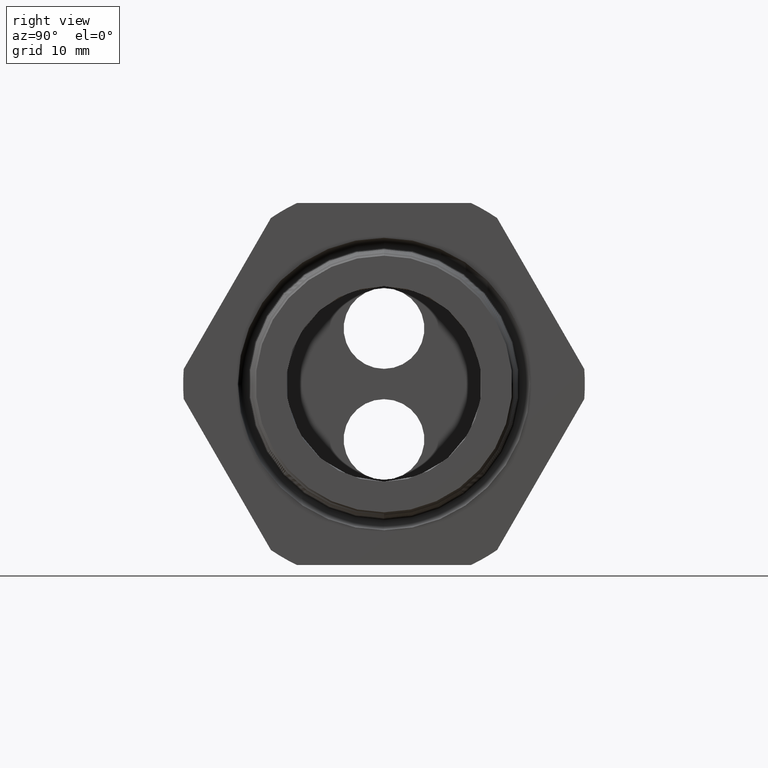
[diagram: clean part render]
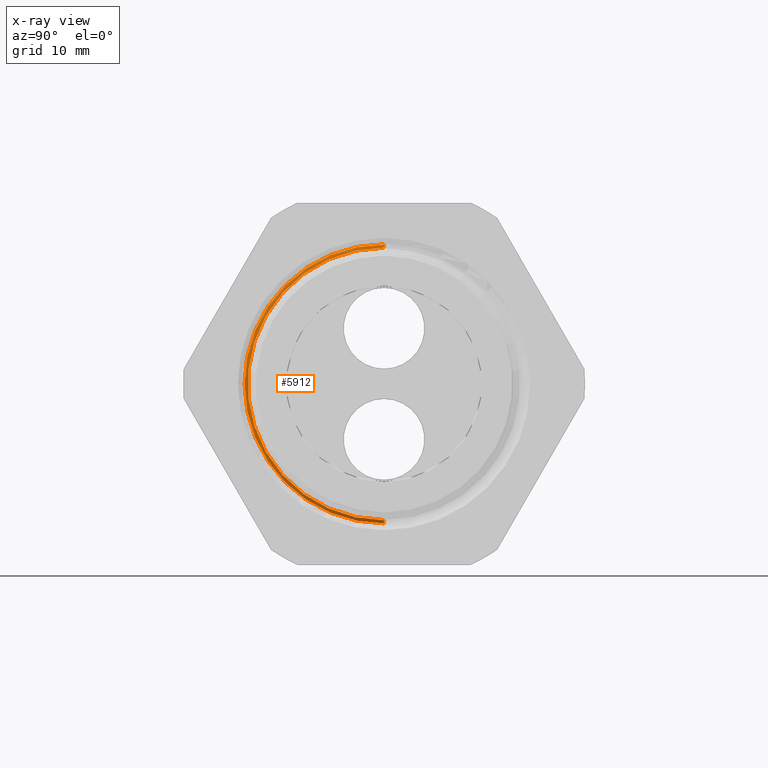
[diagram: x-ray — body ghosted, one internal face saturated and labeled with its STEP entity id]
A machine part, right view, then the same camera in x-ray: the body is ghosted and one INTERNAL B-rep face — a face not visible from any outside direction — is saturated and labeled: STEP entity #5912.
In plain terms, the highlighted conical surface has half-angle 62 deg.
Its self-contained STEP definition (entity closure, byte-faithful):
#61 = VERTEX_POINT ( 'NONE', #513 ) ;
#62 = VERTEX_POINT ( 'NONE', #512 ) ;
#512 = CARTESIAN_POINT ( 'NONE',  ( -0.6067624839723554400, 6.065888310177427100E-017, -0.4895114984791283900 ) ) ;
#513 = CARTESIAN_POINT ( 'NONE',  ( -0.6067624839723554400, 0.0000000000000000000, 0.4895114984791283900 ) ) ;
#968 = EDGE_CURVE ( 'NONE', #62, #986, #1128, .T. ) ;
#986 = VERTEX_POINT ( 'NONE', #1124 ) ;
#1124 = CARTESIAN_POINT ( 'NONE',  ( -0.6129365566449482800, 6.140457212240825100E-017, -0.5011232403534451300 ) ) ;
#1125 = DIRECTION ( 'NONE',  ( -0.4694715627859013000, 1.081298943409538600E-016, -0.8829475928589214400 ) ) ;
#1126 = VECTOR ( 'NONE', #1125, 39.37007874015748100 ) ;
#1127 = CARTESIAN_POINT ( 'NONE',  ( -0.6203149606299212000, 6.306931015608869800E-017, -0.5150000000000000100 ) ) ;
#1128 = LINE ( 'NONE', #1127, #1126 ) ;
#1245 = CARTESIAN_POINT ( 'NONE',  ( -0.6129365566449482800, 0.0000000000000000000, 0.5011232403534451300 ) ) ;
#1246 = DIRECTION ( 'NONE',  ( -0.4694715627859013000, 0.0000000000000000000, 0.8829475928589214400 ) ) ;
#1247 = VECTOR ( 'NONE', #1246, 39.37007874015748100 ) ;
#1248 = CARTESIAN_POINT ( 'NONE',  ( -0.6203149606299212000, 0.0000000000000000000, 0.5150000000000000100 ) ) ;
#1249 = LINE ( 'NONE', #1248, #1247 ) ;
#1840 = DIRECTION ( 'NONE',  ( 0.0000000000000000000, 0.0000000000000000000, 1.000000000000000000 ) ) ;
#1841 = DIRECTION ( 'NONE',  ( 1.000000000000000000, 0.0000000000000000000, 0.0000000000000000000 ) ) ;
#1842 = CARTESIAN_POINT ( 'NONE',  ( -0.6129365566449482800, 0.0000000000000000000, 0.0000000000000000000 ) ) ;
#1843 = AXIS2_PLACEMENT_3D ( 'NONE', #1842, #1841, #1840 ) ;
#1844 = CIRCLE ( 'NONE', #1843, 0.5011232403534451300 ) ;
#3770 = FACE_OUTER_BOUND ( 'NONE', #5913, .T. ) ;
#3828 = DIRECTION ( 'NONE',  ( 0.0000000000000000000, 0.0000000000000000000, -1.000000000000000000 ) ) ;
#3829 = DIRECTION ( 'NONE',  ( 1.000000000000000000, 0.0000000000000000000, 0.0000000000000000000 ) ) ;
#3830 = AXIS2_PLACEMENT_3D ( 'NONE', #3837, #3829, #3828 ) ;
#3831 = CIRCLE ( 'NONE', #3830, 0.4895114984791283900 ) ;
#3832 = DIRECTION ( 'NONE',  ( 0.0000000000000000000, 0.0000000000000000000, 1.000000000000000000 ) ) ;
#3833 = DIRECTION ( 'NONE',  ( -1.000000000000000000, 0.0000000000000000000, 0.0000000000000000000 ) ) ;
#3834 = CARTESIAN_POINT ( 'NONE',  ( -0.6203149606299212000, 0.0000000000000000000, 0.0000000000000000000 ) ) ;
#3835 = AXIS2_PLACEMENT_3D ( 'NONE', #3834, #3833, #3832 ) ;
#3836 = CONICAL_SURFACE ( 'NONE', #3835, 0.5150000000000000100, 1.082104136236472500 ) ;
#3837 = CARTESIAN_POINT ( 'NONE',  ( -0.6067624839723554400, 0.0000000000000000000, 0.0000000000000000000 ) ) ;
#4477 = EDGE_CURVE ( 'NONE', #61, #4478, #1249, .T. ) ;
#4478 = VERTEX_POINT ( 'NONE', #1245 ) ;
#4775 = EDGE_CURVE ( 'NONE', #4478, #986, #1844, .T. ) ;
#5840 = ORIENTED_EDGE ( 'NONE', *, *, #4477, .T. ) ;
#5841 = ORIENTED_EDGE ( 'NONE', *, *, #4775, .T. ) ;
#5912 = ADVANCED_FACE ( 'NONE', ( #3770 ), #3836, .T. ) ;
#5913 = EDGE_LOOP ( 'NONE', ( #5914, #5915, #5840, #5841 ) ) ;
#5914 = ORIENTED_EDGE ( 'NONE', *, *, #968, .F. ) ;
#5915 = ORIENTED_EDGE ( 'NONE', *, *, #5916, .F. ) ;
#5916 = EDGE_CURVE ( 'NONE', #61, #62, #3831, .T. ) ;